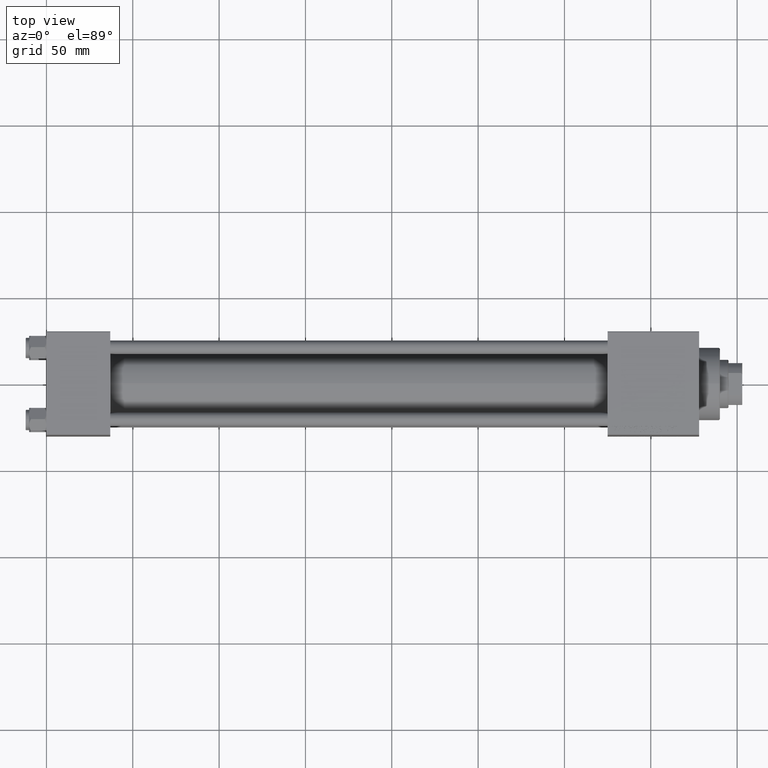
[diagram: clean part render]
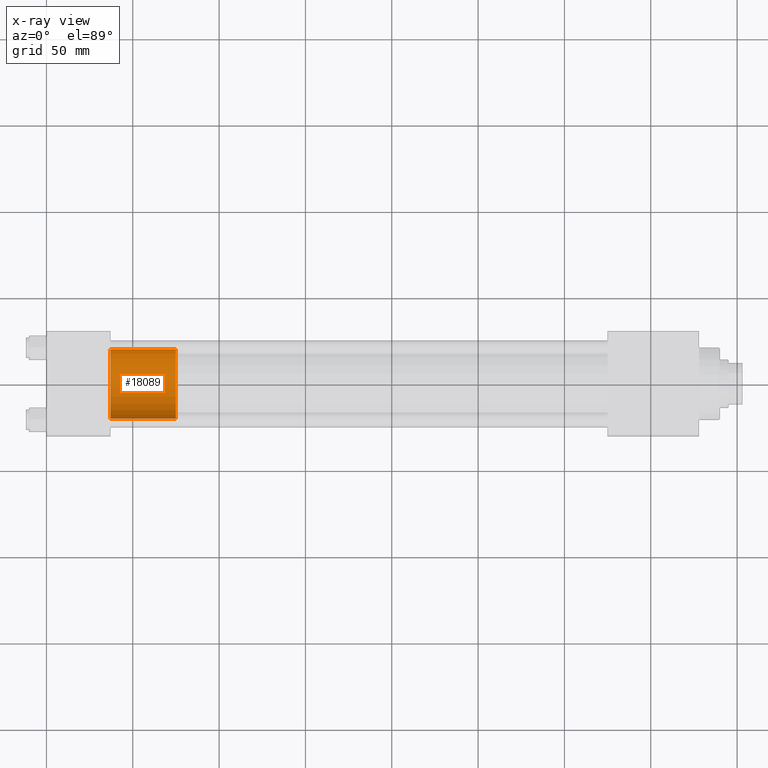
[diagram: x-ray — body ghosted, one internal face saturated and labeled with its STEP entity id]
A machine part, top view, then the same camera in x-ray: the body is ghosted and one INTERNAL B-rep face — a face not visible from any outside direction — is saturated and labeled: STEP entity #18089.
In plain terms, the highlighted cylindrical surface (edge-blend (fillet) strip) has radius 20 mm, axis along (-1, 0, 0).
Its self-contained STEP definition (entity closure, byte-faithful):
#2785 = CARTESIAN_POINT ( 'NONE',  ( -20.00000000000000000, 0.000000000000000000, 38.00000000000000000 ) ) ;
#4097 = EDGE_CURVE ( 'NONE', #34045, #36484, #19151, .T. ) ;
#6105 = CIRCLE ( 'NONE', #25571, 20.00000000000000000 ) ;
#6166 = CARTESIAN_POINT ( 'NONE',  ( 20.00000000000000000, 2.449293598294706513E-15, 38.00000000000000000 ) ) ;
#6389 = CARTESIAN_POINT ( 'NONE',  ( 0.000000000000000000, 0.000000000000000000, 0.000000000000000000 ) ) ;
#6742 = ORIENTED_EDGE ( 'NONE', *, *, #32549, .T. ) ;
#7813 = CARTESIAN_POINT ( 'NONE',  ( -20.00000000000000000, 0.000000000000000000, 0.000000000000000000 ) ) ;
#9102 = DIRECTION ( 'NONE',  ( 0.000000000000000000, 0.000000000000000000, 1.000000000000000000 ) ) ;
#9885 = DIRECTION ( 'NONE',  ( -1.000000000000000000, 0.000000000000000000, 0.000000000000000000 ) ) ;
#12886 = ORIENTED_EDGE ( 'NONE', *, *, #4097, .F. ) ;
#14255 = DIRECTION ( 'NONE',  ( 0.000000000000000000, 0.000000000000000000, 1.000000000000000000 ) ) ;
#15157 = CIRCLE ( 'NONE', #25699, 20.00000000000000000 ) ;
#17548 = DIRECTION ( 'NONE',  ( 1.000000000000000000, 0.000000000000000000, 0.000000000000000000 ) ) ;
#17984 = CARTESIAN_POINT ( 'NONE',  ( 0.000000000000000000, 0.000000000000000000, 38.00000000000000000 ) ) ;
#18089 = ADVANCED_FACE ( 'NONE', ( #49226 ), #21810, .T. ) ;
#18283 = ORIENTED_EDGE ( 'NONE', *, *, #43979, .T. ) ;
#19151 = LINE ( 'NONE', #41762, #28955 ) ;
#20962 = VECTOR ( 'NONE', #29524, 1000.000000000000000 ) ;
#21810 = CYLINDRICAL_SURFACE ( 'NONE', #36573, 20.00000000000000000 ) ;
#22726 = DIRECTION ( 'NONE',  ( -0.000000000000000000, -0.000000000000000000, -1.000000000000000000 ) ) ;
#25571 = AXIS2_PLACEMENT_3D ( 'NONE', #6389, #14255, #17548 ) ;
#25699 = AXIS2_PLACEMENT_3D ( 'NONE', #27627, #9102, #28134 ) ;
#27627 = CARTESIAN_POINT ( 'NONE',  ( 0.000000000000000000, 0.000000000000000000, 38.00000000000000000 ) ) ;
#28134 = DIRECTION ( 'NONE',  ( 1.000000000000000000, 0.000000000000000000, 0.000000000000000000 ) ) ;
#28955 = VECTOR ( 'NONE', #22726, 1000.000000000000000 ) ;
#29524 = DIRECTION ( 'NONE',  ( -0.000000000000000000, -0.000000000000000000, -1.000000000000000000 ) ) ;
#32549 = EDGE_CURVE ( 'NONE', #49034, #36484, #6105, .T. ) ;
#34045 = VERTEX_POINT ( 'NONE', #2785 ) ;
#36484 = VERTEX_POINT ( 'NONE', #7813 ) ;
#36573 = AXIS2_PLACEMENT_3D ( 'NONE', #17984, #44657, #9885 ) ;
#36899 = LINE ( 'NONE', #6166, #20962 ) ;
#37979 = CARTESIAN_POINT ( 'NONE',  ( 20.00000000000000000, 2.449293598294706513E-15, 38.00000000000000000 ) ) ;
#41762 = CARTESIAN_POINT ( 'NONE',  ( -20.00000000000000000, 0.000000000000000000, 38.00000000000000000 ) ) ;
#42532 = ORIENTED_EDGE ( 'NONE', *, *, #48834, .F. ) ;
#43979 = EDGE_CURVE ( 'NONE', #45152, #49034, #36899, .T. ) ;
#44657 = DIRECTION ( 'NONE',  ( -0.000000000000000000, -0.000000000000000000, -1.000000000000000000 ) ) ;
#45152 = VERTEX_POINT ( 'NONE', #37979 ) ;
#45350 = EDGE_LOOP ( 'NONE', ( #42532, #18283, #6742, #12886 ) ) ;
#47541 = CARTESIAN_POINT ( 'NONE',  ( 20.00000000000000000, 2.449293598294706513E-15, 0.000000000000000000 ) ) ;
#48834 = EDGE_CURVE ( 'NONE', #45152, #34045, #15157, .T. ) ;
#49034 = VERTEX_POINT ( 'NONE', #47541 ) ;
#49226 = FACE_OUTER_BOUND ( 'NONE', #45350, .T. ) ;